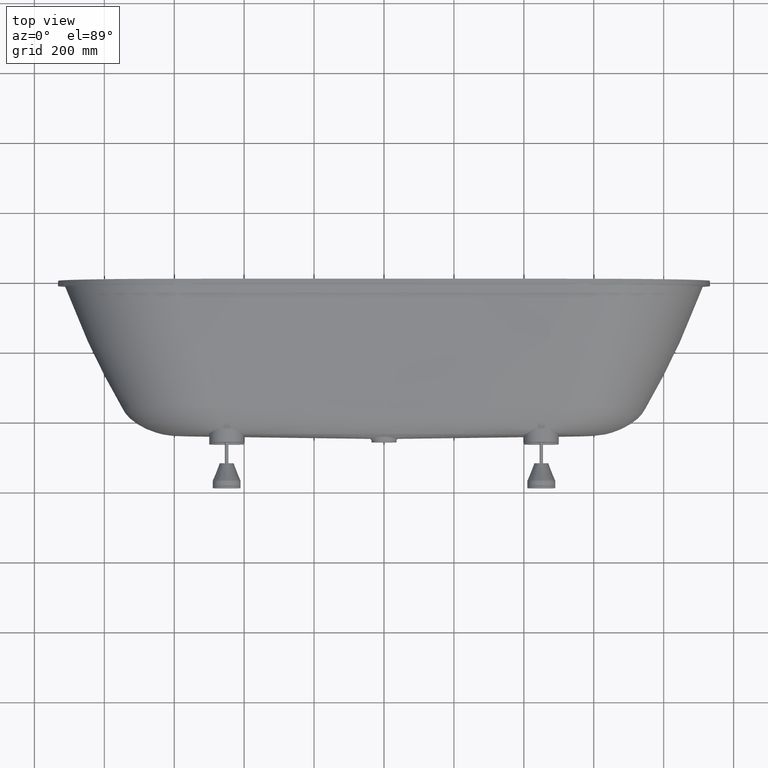
[diagram: clean part render]
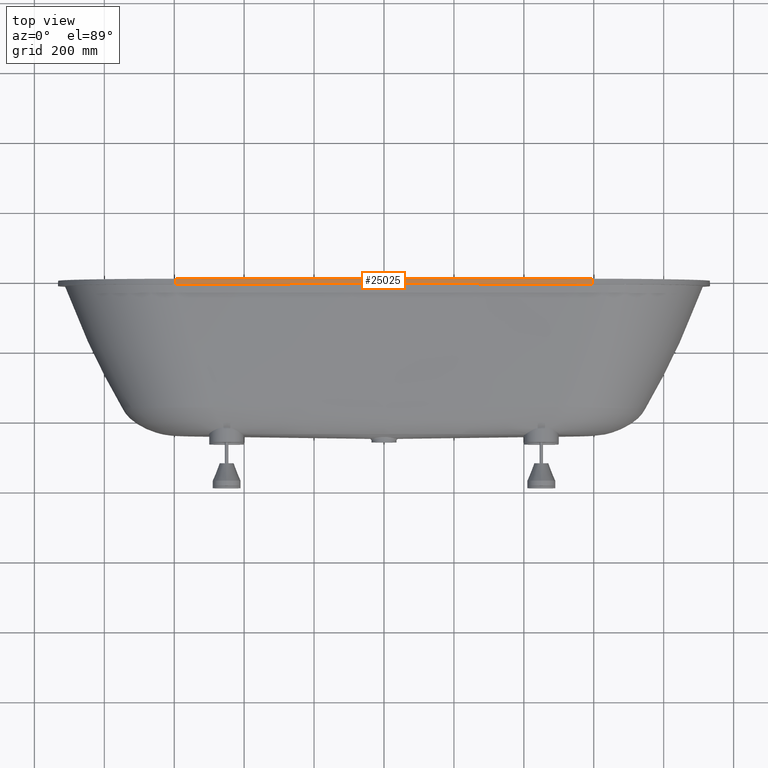
[diagram: same view with one face highlighted and labeled with its STEP entity id]
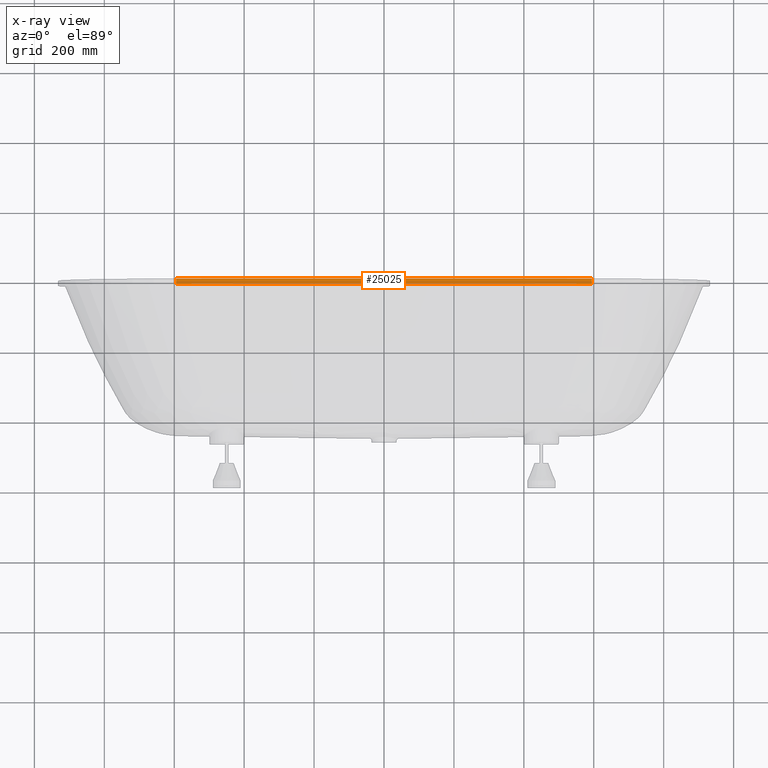
[diagram: x-ray of the same camera — body ghosted, the highlighted face saturated]
A machine part, top view. The second image highlights one B-rep face of the part: STEP entity #25025.
The next image is the same camera in x-ray: the body ghosted, the highlighted face saturated — about 0% of this face is hidden behind the body in this view.
In plain terms, the highlighted face is a freeform B-spline surface patch.
Its self-contained STEP definition (entity closure, byte-faithful):
#2207 = ORIENTED_EDGE ( 'NONE', *, *, #21019, .F. ) ;
#3267 = CARTESIAN_POINT ( 'NONE',  ( -594.7215155686815300, -15.00000000000000000, 356.6650128610604600 ) ) ;
#4755 = B_SPLINE_SURFACE_WITH_KNOTS ( 'NONE', 3, 1, ( 
 ( #38168, #39706 ),
 ( #37803, #37623 ),
 ( #37251, #37061 ),
 ( #36871, #36689 ),
 ( #36512, #36312 ),
 ( #36124, #35939 ),
 ( #35751, #35559 ),
 ( #35370, #35172 ),
 ( #35101, #34981 ),
 ( #34910, #34719 ) ),
 .UNSPECIFIED., .F., .F., .F.,
 ( 4, 2, 2, 2, 4 ),
 ( 2, 2 ),
 ( 0.0000000000000000000, 0.2500000000000000000, 0.5000000000000000000, 0.7500000000000000000, 1.000000000000000000 ),
 ( 0.0000000000000000000, 1.000000000000000000 ),
 .UNSPECIFIED. ) ;
#5689 = B_SPLINE_CURVE_WITH_KNOTS ( 'NONE', 3,
 ( #12651, #12761, #13373, #12226, #12184, #12120, #12054, #11868, #11751, #11681 ),
 .UNSPECIFIED., .F., .F.,
 ( 4, 2, 2, 2, 4 ),
 ( 0.0000000000000000000, 0.2500000000000000000, 0.5000000000000000000, 0.7500000000000000000, 1.000000000000000000 ),
 .UNSPECIFIED. ) ;
#11681 = CARTESIAN_POINT ( 'NONE',  ( 594.7215155686782300, -15.00000000000000000, 356.6650128610603500 ) ) ;
#11751 = CARTESIAN_POINT ( 'NONE',  ( 495.6815674060587200, -15.00000000000000000, 361.9855914930707900 ) ) ;
#11868 = CARTESIAN_POINT ( 'NONE',  ( 396.6057849327670500, -15.00000000000000000, 365.9698886927699800 ) ) ;
#12054 = CARTESIAN_POINT ( 'NONE',  ( 198.3829498168264800, -15.00000000000000000, 371.2807787243942200 ) ) ;
#12120 = CARTESIAN_POINT ( 'NONE',  ( 99.23584195985907300, -15.00000000000000000, 372.6073439935528300 ) ) ;
#12184 = CARTESIAN_POINT ( 'NONE',  ( -99.12927784432848500, -15.00000000000000000, 372.6082926987177800 ) ) ;
#12226 = CARTESIAN_POINT ( 'NONE',  ( -198.2941240808417800, -15.00000000000000000, 371.2826826848716500 ) ) ;
#12651 = CARTESIAN_POINT ( 'NONE',  ( -594.7215155686815300, -15.00000000000000000, 356.6650128610604600 ) ) ;
#12761 = CARTESIAN_POINT ( 'NONE',  ( -495.6817034109386700, -15.00000000000000000, 361.9855841866796000 ) ) ;
#13373 = CARTESIAN_POINT ( 'NONE',  ( -396.5881662805847400, -15.00000000000000000, 365.9708363908571300 ) ) ;
#14650 = EDGE_CURVE ( 'NONE', #28561, #38805, #5689, .T. ) ;
#16793 = CARTESIAN_POINT ( 'NONE',  ( -594.7215155686815300, 0.0000000000000000000, 356.6650128610604600 ) ) ;
#17285 = CARTESIAN_POINT ( 'NONE',  ( 594.7215155686782300, 0.0000000000000000000, 356.6650128610603500 ) ) ;
#17461 = CARTESIAN_POINT ( 'NONE',  ( 495.7730447081593800, -0.0000000000000000000, 361.9806673062024100 ) ) ;
#17694 = CARTESIAN_POINT ( 'NONE',  ( 396.6973286435314800, -0.0000000000000000000, 365.9674409220432400 ) ) ;
#17838 = CARTESIAN_POINT ( 'NONE',  ( 295.9443211049728600, 0.0000000000000000000, 368.6668632833720400 ) ) ;
#17879 = CARTESIAN_POINT ( 'NONE',  ( 294.3981915077475300, -0.0000000000000000000, 368.7079634824986600 ) ) ;
#18020 = CARTESIAN_POINT ( 'NONE',  ( 291.3019644098713500, -0.0000000000000000000, 368.7896213140783200 ) ) ;
#18064 = CARTESIAN_POINT ( 'NONE',  ( 286.6575725322302900, -0.0000000000000000000, 368.9111361191102100 ) ) ;
#18215 = CARTESIAN_POINT ( 'NONE',  ( 275.8202995352800100, -0.0000000000000000000, 369.1878670678262300 ) ) ;
#18438 = CARTESIAN_POINT ( 'NONE',  ( 254.1443190782275400, -0.0000000000000000000, 369.7141145798137200 ) ) ;
#18621 = CARTESIAN_POINT ( 'NONE',  ( 210.7866203115163200, -0.0000000000000000000, 370.6577520620202200 ) ) ;
#18762 = CARTESIAN_POINT ( 'NONE',  ( 124.0482713676667900, -0.0000000000000000000, 372.1095968593554600 ) ) ;
#19001 = CARTESIAN_POINT ( 'NONE',  ( 49.66176985506385200, 0.0000000000000000000, 372.6075835420867300 ) ) ;
#19259 = DIRECTION ( 'NONE',  ( 0.0000000000000000000, 1.000000000000000000, 0.0000000000000000000 ) ) ;
#19635 = CARTESIAN_POINT ( 'NONE',  ( 594.7215155686782300, -15.00000000000000000, 356.6650128610603500 ) ) ;
#19920 = CARTESIAN_POINT ( 'NONE',  ( -6.147778916896970500, 0.0000000000000000000, 372.6078476966412200 ) ) ;
#21019 = EDGE_CURVE ( 'NONE', #34740, #46408, #33623, .T. ) ;
#21391 = CARTESIAN_POINT ( 'NONE',  ( -12.35088841283876300, -0.0000000000000000000, 372.6026915530776500 ) ) ;
#21947 = CARTESIAN_POINT ( 'NONE',  ( -24.75422959289437200, -0.0000000000000000000, 372.5820082447989400 ) ) ;
#21994 = CARTESIAN_POINT ( 'NONE',  ( -43.35841207242930300, -0.0000000000000000000, 372.5354267671590900 ) ) ;
#22140 = CARTESIAN_POINT ( 'NONE',  ( -86.76236615750494300, -0.0000000000000000000, 372.3178410461188200 ) ) ;
#22331 = CARTESIAN_POINT ( 'NONE',  ( -173.5470541922992400, -0.0000000000000000000, 371.4470871778375500 ) ) ;
#22375 = CARTESIAN_POINT ( 'NONE',  ( -247.8941237043680400, 0.0000000000000000000, 369.9540139886871700 ) ) ;
#22523 = CARTESIAN_POINT ( 'NONE',  ( -298.9894896018491300, 0.0000000000000000000, 368.5852828362762400 ) ) ;
#22569 = CARTESIAN_POINT ( 'NONE',  ( -300.5417743302809900, -0.0000000000000000000, 368.5433752028159200 ) ) ;
#22724 = CARTESIAN_POINT ( 'NONE',  ( -303.6423099690292100, -0.0000000000000000000, 368.4590172332910900 ) ) ;
#22768 = CARTESIAN_POINT ( 'NONE',  ( -308.2930199163320100, -0.0000000000000000000, 368.3315066445265400 ) ) ;
#22918 = CARTESIAN_POINT ( 'NONE',  ( -319.1440218843014800, -0.0000000000000000000, 368.0271664960770900 ) ) ;
#23110 = CARTESIAN_POINT ( 'NONE',  ( -340.8434075172942800, -0.0000000000000000000, 367.3912244338383700 ) ) ;
#23350 = CARTESIAN_POINT ( 'NONE',  ( -384.2317055714933600, -0.0000000000000000000, 366.0102932479978800 ) ) ;
#23540 = CARTESIAN_POINT ( 'NONE',  ( -594.7215155686815300, 0.0000000000000000000, 356.6650128610604600 ) ) ;
#23909 = CARTESIAN_POINT ( 'NONE',  ( -545.2386238901451600, 0.0000000000000000000, 359.3233051097606700 ) ) ;
#25025 = ADVANCED_FACE ( 'NONE', ( #45975 ), #4755, .T. ) ;
#25232 = CARTESIAN_POINT ( 'NONE',  ( 594.7215155686782300, 0.0000000000000000000, 356.6650128610603500 ) ) ;
#26835 = LINE ( 'NONE', #32241, #48540 ) ;
#27016 = EDGE_CURVE ( 'NONE', #38805, #46408, #33047, .T. ) ;
#27678 = CARTESIAN_POINT ( 'NONE',  ( -470.9664088327471600, -0.0000000000000000000, 362.8122426308870600 ) ) ;
#28561 = VERTEX_POINT ( 'NONE', #3267 ) ;
#31581 = DIRECTION ( 'NONE',  ( 0.0000000000000000000, 1.000000000000000000, 0.0000000000000000000 ) ) ;
#31598 = ORIENTED_EDGE ( 'NONE', *, *, #14650, .T. ) ;
#32241 = CARTESIAN_POINT ( 'NONE',  ( -594.7215155686815300, -15.00000000000000000, 356.6650128610604600 ) ) ;
#32388 = ORIENTED_EDGE ( 'NONE', *, *, #42568, .F. ) ;
#33047 = LINE ( 'NONE', #19635, #37745 ) ;
#33623 = B_SPLINE_CURVE_WITH_KNOTS ( 'NONE', 3,
 ( #23540, #23909, #27678, #23350, #23110, #22918, #22768, #22724, #22569, #22523, #22375, #22331, #22140, #21994, #21947, #21391, #19920, #19001, #18762, #18621, #18438, #18215, #18064, #18020, #17879, #17838, #17694, #17461, #17285 ),
 .UNSPECIFIED., .F., .F.,
 ( 4, 1, 1, 1, 1, 1, 2, 2, 1, 1, 1, 2, 2, 1, 1, 1, 1, 1, 2, 2, 4 ),
 ( 0.0000000000000000000, 0.1250000000000002500, 0.1875000000000003900, 0.2187500000000004400, 0.2343750000000004700, 0.2421875000000004700, 0.2460937500000005000, 0.2500000000000005000, 0.3750000000000021600, 0.4375000000000030000, 0.4687500000000033900, 0.4843750000000035500, 0.5000000000000037700, 0.6250000000000054400, 0.6875000000000062200, 0.7187500000000066600, 0.7343750000000066600, 0.7421875000000066600, 0.7460937500000066600, 0.7500000000000067700, 1.000000000000000000 ),
 .UNSPECIFIED. ) ;
#34719 = CARTESIAN_POINT ( 'NONE',  ( 594.7215155686782300, 0.0000000000000000000, 356.6650128610603500 ) ) ;
#34740 = VERTEX_POINT ( 'NONE', #16793 ) ;
#34910 = CARTESIAN_POINT ( 'NONE',  ( 594.7215155686782300, -15.00000000000000000, 356.6650128610603500 ) ) ;
#34981 = CARTESIAN_POINT ( 'NONE',  ( 495.6815674060587200, 0.0000000000000000000, 361.9855914930707900 ) ) ;
#35101 = CARTESIAN_POINT ( 'NONE',  ( 495.6815674060587200, -15.00000000000000000, 361.9855914930707900 ) ) ;
#35172 = CARTESIAN_POINT ( 'NONE',  ( 396.6057849327670500, 0.0000000000000000000, 365.9698886927699800 ) ) ;
#35370 = CARTESIAN_POINT ( 'NONE',  ( 396.6057849327670500, -15.00000000000000000, 365.9698886927699800 ) ) ;
#35559 = CARTESIAN_POINT ( 'NONE',  ( 198.3829498168264800, 0.0000000000000000000, 371.2807787243942200 ) ) ;
#35709 = CARTESIAN_POINT ( 'NONE',  ( 594.7215155686782300, -15.00000000000000000, 356.6650128610603500 ) ) ;
#35751 = CARTESIAN_POINT ( 'NONE',  ( 198.3829498168264800, -15.00000000000000000, 371.2807787243942200 ) ) ;
#35939 = CARTESIAN_POINT ( 'NONE',  ( 99.23584195985907300, 0.0000000000000000000, 372.6073439935528300 ) ) ;
#36124 = CARTESIAN_POINT ( 'NONE',  ( 99.23584195985907300, -15.00000000000000000, 372.6073439935528300 ) ) ;
#36312 = CARTESIAN_POINT ( 'NONE',  ( -99.12927784432848500, 0.0000000000000000000, 372.6082926987177800 ) ) ;
#36512 = CARTESIAN_POINT ( 'NONE',  ( -99.12927784432848500, -15.00000000000000000, 372.6082926987177800 ) ) ;
#36689 = CARTESIAN_POINT ( 'NONE',  ( -198.2941240808417800, 0.0000000000000000000, 371.2826826848716500 ) ) ;
#36871 = CARTESIAN_POINT ( 'NONE',  ( -198.2941240808417800, -15.00000000000000000, 371.2826826848716500 ) ) ;
#37061 = CARTESIAN_POINT ( 'NONE',  ( -396.5881662805847400, 0.0000000000000000000, 365.9708363908571300 ) ) ;
#37251 = CARTESIAN_POINT ( 'NONE',  ( -396.5881662805847400, -15.00000000000000000, 365.9708363908571300 ) ) ;
#37623 = CARTESIAN_POINT ( 'NONE',  ( -495.6817034109386700, 0.0000000000000000000, 361.9855841866796000 ) ) ;
#37745 = VECTOR ( 'NONE', #19259, 1000.000000000000000 ) ;
#37803 = CARTESIAN_POINT ( 'NONE',  ( -495.6817034109386700, -15.00000000000000000, 361.9855841866796000 ) ) ;
#38168 = CARTESIAN_POINT ( 'NONE',  ( -594.7215155686815300, -15.00000000000000000, 356.6650128610604600 ) ) ;
#38805 = VERTEX_POINT ( 'NONE', #35709 ) ;
#39706 = CARTESIAN_POINT ( 'NONE',  ( -594.7215155686815300, 0.0000000000000000000, 356.6650128610604600 ) ) ;
#42568 = EDGE_CURVE ( 'NONE', #28561, #34740, #26835, .T. ) ;
#44575 = EDGE_LOOP ( 'NONE', ( #2207, #32388, #31598, #55946 ) ) ;
#45975 = FACE_OUTER_BOUND ( 'NONE', #44575, .T. ) ;
#46408 = VERTEX_POINT ( 'NONE', #25232 ) ;
#48540 = VECTOR ( 'NONE', #31581, 1000.000000000000000 ) ;
#55946 = ORIENTED_EDGE ( 'NONE', *, *, #27016, .T. ) ;